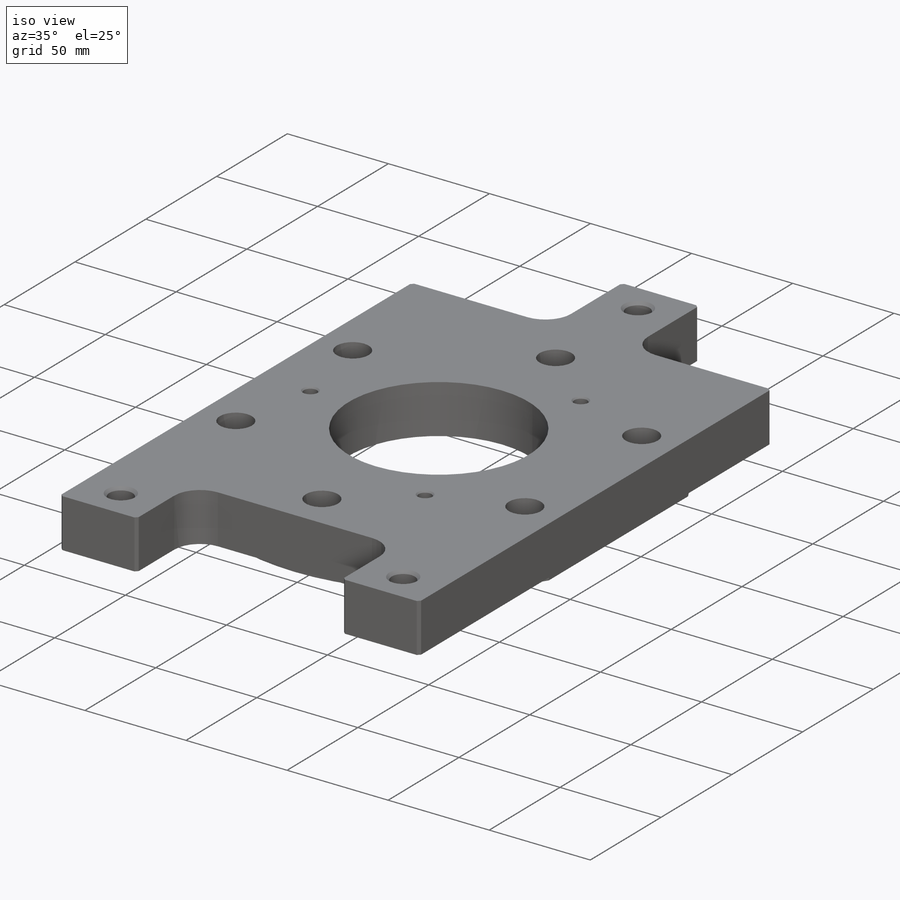
[diagram: iso view]
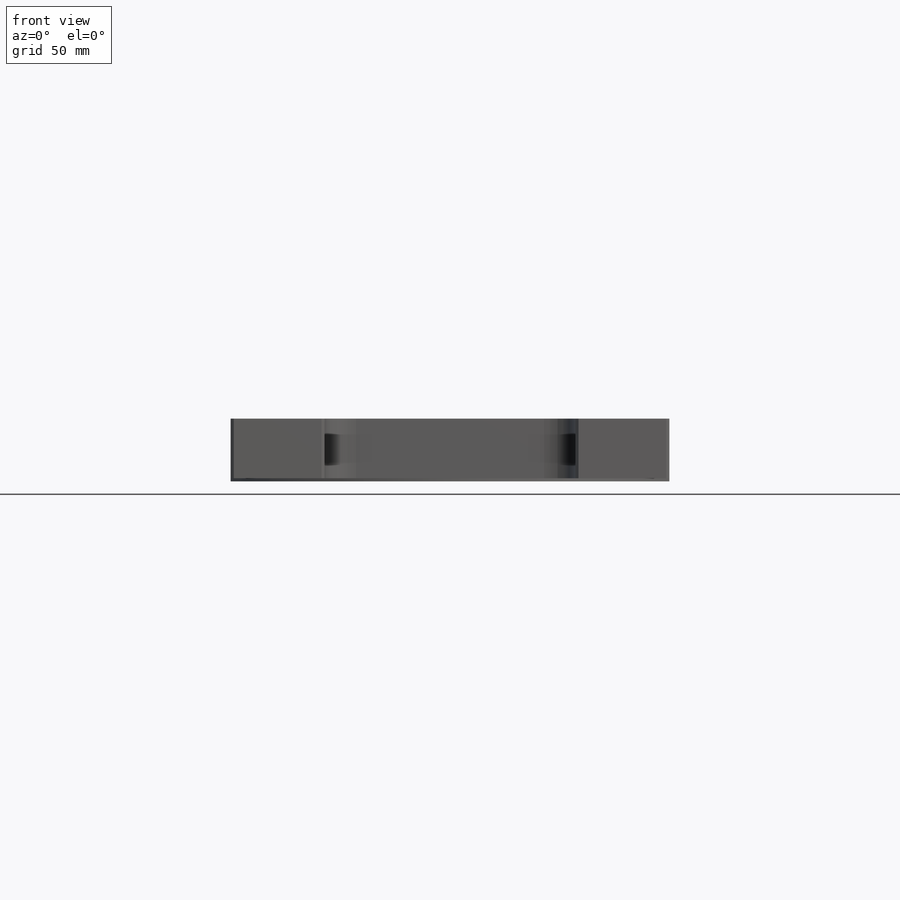
[diagram: front view]
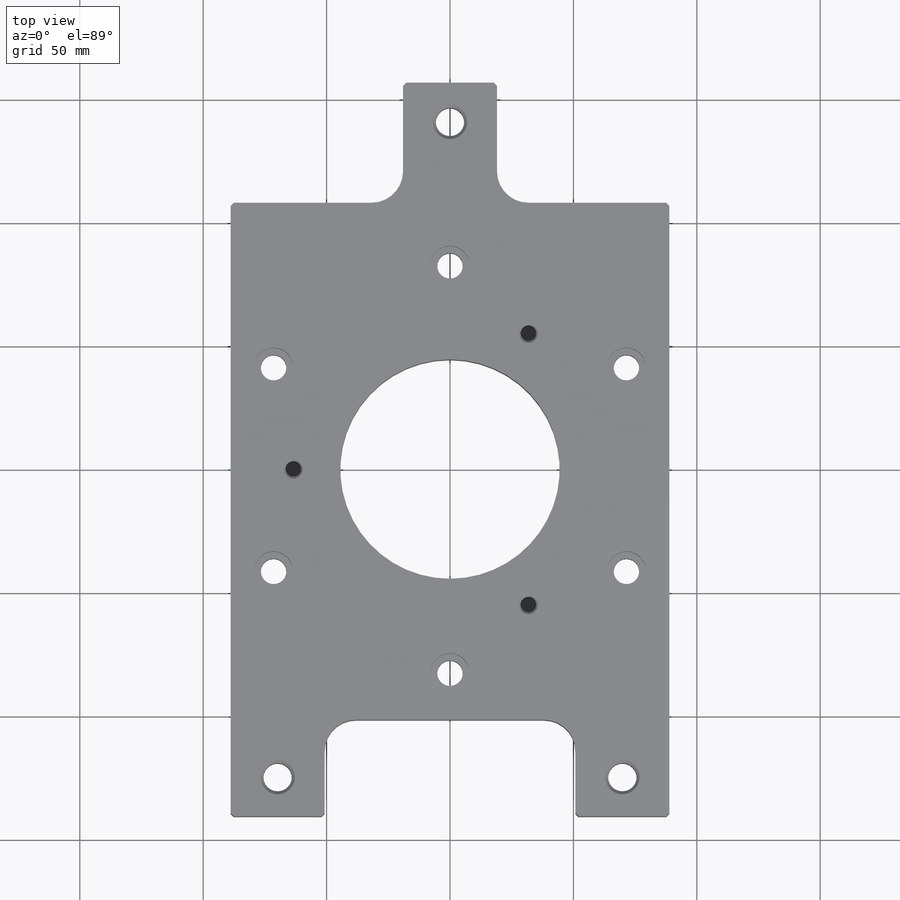
[diagram: top view]
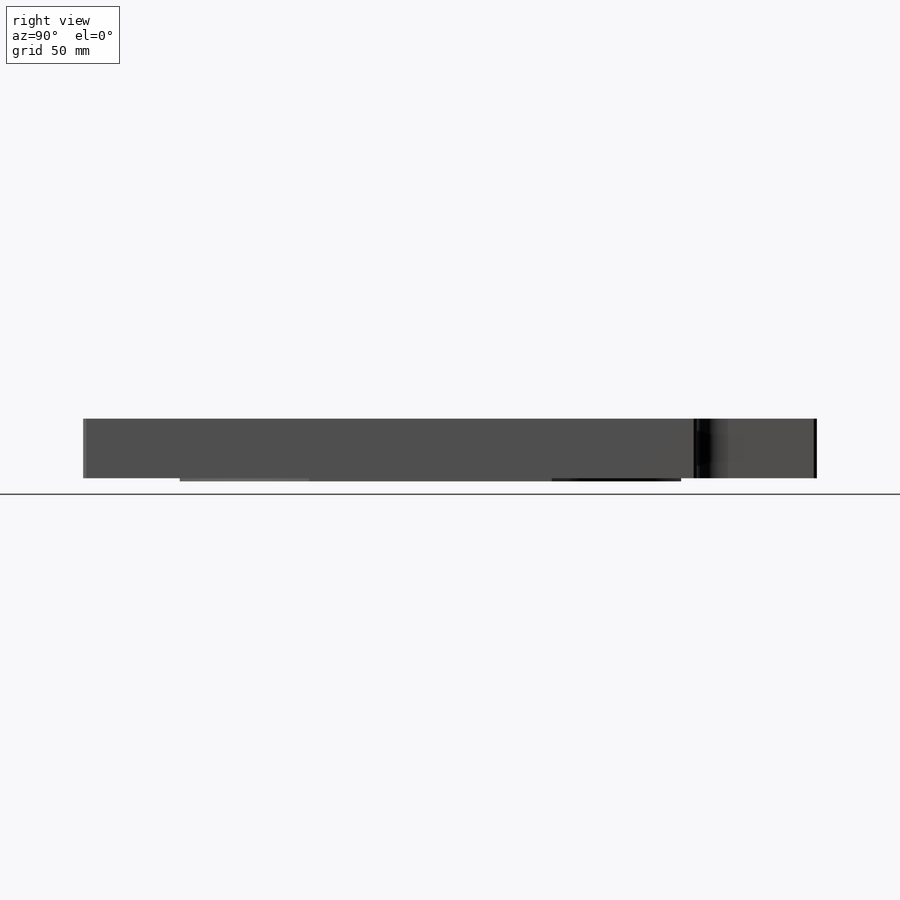
[diagram: right view]
SOLIDWORKS PART (.sldprt)
format: sldprt  version: not decoded by parser v0  size: 509,440 bytes
history: native  units: mm
features: sketch x12, cut_extrude x5, hole x3, thread x3, chamfer x2, material x1, extrude x1, fillet x1 + 1 further entry (+13 scaffold rows collapsed)
feature tree (42):
  scaffold x13  (default folders/planes/origin — collapsed)
  material  "AISI 1018 Steel, Cold Rolled"
  "Origin"  ID=-1
  sketch  "Sketch1"  dims[D1=177.8mm D2=311.15mm D3=3.175mm]
  extrude  "Extrude1"  Depth=25.4mm
  hole  "CBORE for 3/8 Socket Head Cap Screw1"  Diameter=10.31748mm Depth=25.4mm
  sketch  "Sketch3"  dims[c1.D2=165.1mm c1.D1=~58.621092mm c2.D1=60.0deg]
  sketch  "Sketch2"  dims[hole-wizard template sketch: 43 standard entries collapsed; hole parameters kept: c12.C'Bore Dia.=15.875mm c12.C'Bore Depth=10.16mm c12.Far C'Sink Dia.=11.43mm c12.D6=~2.963249mm c12.Far C'Sink Angle=82.0deg]
  sketch  "Sketch4"  dims[D1=88.9mm]
  cut_extrude  "Cut-Extrude1"  [1 undecoded]
  sketch  "Sketch8"  dims[D1=127.0mm]
  cut_extrude  "Cut-Extrude4"  Depth=1.27mm
  sketch  "Sketch9"  dims[D1=203.2mm]
  cut_extrude  "Cut-Extrude5"  [1 undecoded]
  hole  "1/4-20 Tapped Hole1"  Diameter=5.1054mm Depth=16.51mm
  sketch  "Sketch11"  dims[c1.D2=127.0mm c1.D1=~56.374883mm c2.D1=120.0deg]
  sketch  "Sketch10"  dims[hole-wizard template sketch: 27 standard entries collapsed; hole parameters kept: c8.Tap Drill Depth=16.51mm c8.Thread Major Dia.=6.35mm c8.Thread Depth=12.7mm c8.Near C'Sink Dia.=7.62mm c8.D6=~4.399409mm c8.Near C'Sink Angle=82.0deg c8.D7=~14.816244mm c8.Drill Angle=180.0deg]
  sketch  "Sketch18"  dims[c1.D1=50.8mm c1.D2=44.45mm c1.D3=6.35mm c1.D4=209.55mm c2.D1=44.45mm c2.D2=50.8mm c2.D3=209.55mm c3.D1=38.1mm c3.D4=38.1mm]
  cut_extrude  "Cut-Extrude7"  [1 undecoded]
  sketch  "Sketch19"  dims[D1=11.684mm D2=2.159mm]
  cut_extrude  "Cut-Extrude8"  [1 undecoded]
  hole  "1/2-20 Tapped Hole1"  [1 undecoded]
  sketch  "Sketch15"  dims[c1.D1=15.875mm c1.D2=139.7mm c2.D1=15.875mm c2.D2=25.4mm c3.D1=120.65mm c3.D2=50.8mm c3.D3=273.05mm c4.D1=120.65mm c4.D2=260.35mm c4.D3=50.8mm c5.D1=15.875mm]
  thread  "Hole Thread1"  Diameter=12.7mm  [1 undecoded]
  thread  "Hole Thread2"  Diameter=12.7mm  [1 undecoded]
  thread  "Hole Thread3"  Diameter=12.7mm  [1 undecoded]
  sketch  "Sketch14"  dims[hole-wizard template sketch: 46 standard entries collapsed; hole parameters kept: c15.Thru Tap Drill Dia.=~11.50874mm c15.Thru Tap Drill Depth=24.13mm c15.Near C'Sink Dia.=13.97mm c15.D4=~3.666174mm c15.Near C'Sink Angle=82.0deg c15.Far C'Sink Dia.=13.97mm c15.D6=~9.919017mm c15.Far C'Sink Angle=82.0deg]
  fillet  "Fillet2"  Radius=12.7mm
  chamfer  "Chamfer1"  Distance=1.27mm Angle=45deg
  chamfer  "Chamfer2"  Distance=0.508mm Angle=45deg
decode coverage: 22 of 27 modeling features carry decoded parameters; 1 rows unclassified (native names shown)
note: ~ marks probable driven/reference dimensions
note: 8 parameter values undecoded
summary: no parameter record found for 5 features
note: suppression state not decoded; provenance and decode notes live in map.json
